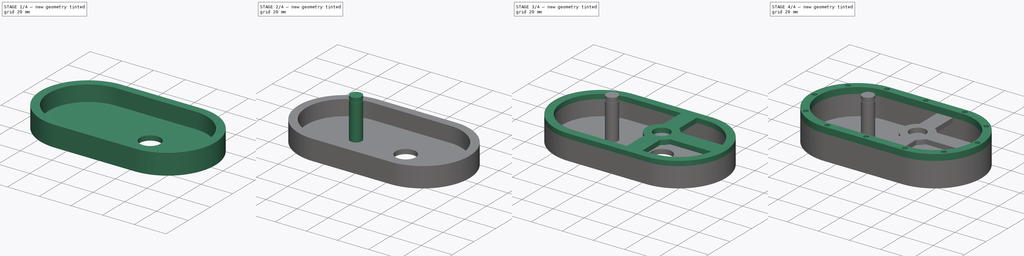
[diagram: build sequence overview — one tinted view per stage of 4, left to right]
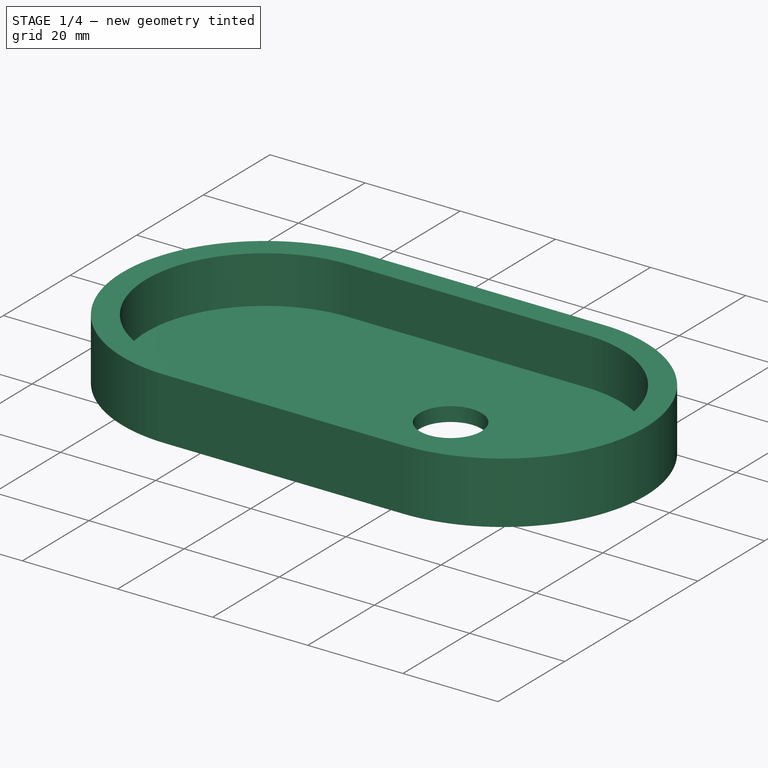
[diagram: stage 1 of 4 — iso view after this stage's code; geometry added in this stage tinted green]
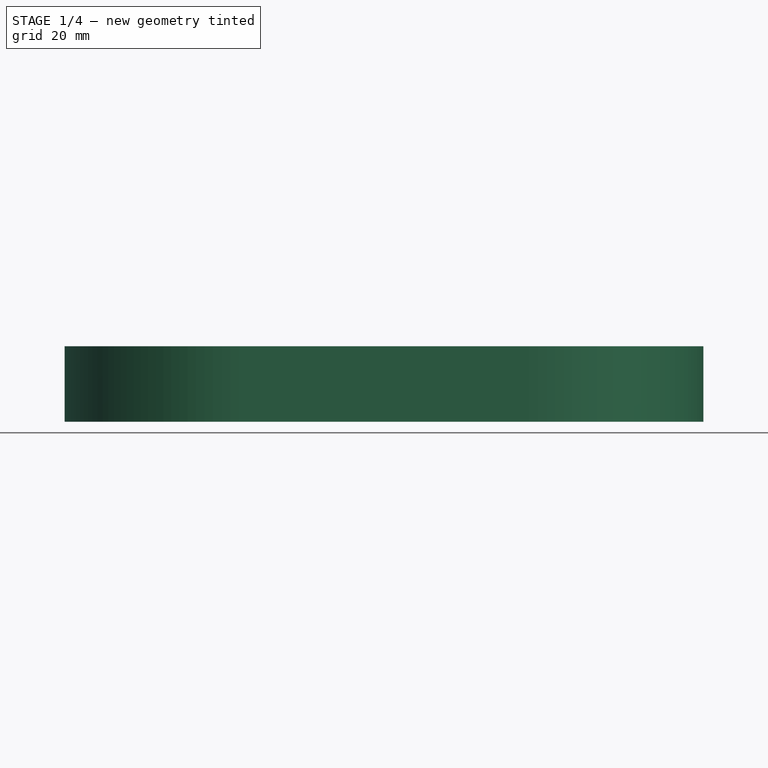
[diagram: stage 1 of 4 — front view after this stage's code; geometry added in this stage tinted green]
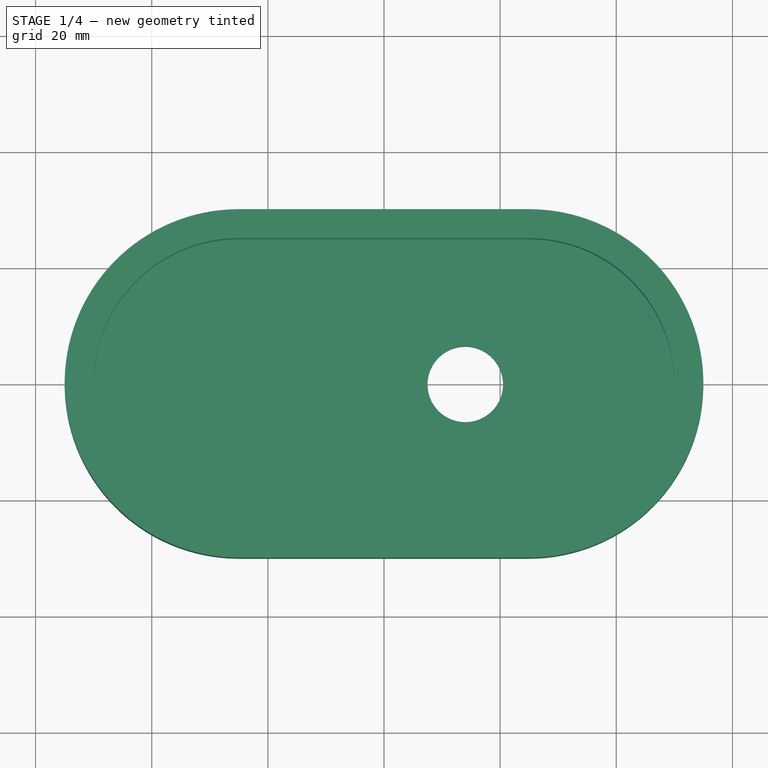
[diagram: stage 1 of 4 — top view after this stage's code; geometry added in this stage tinted green]
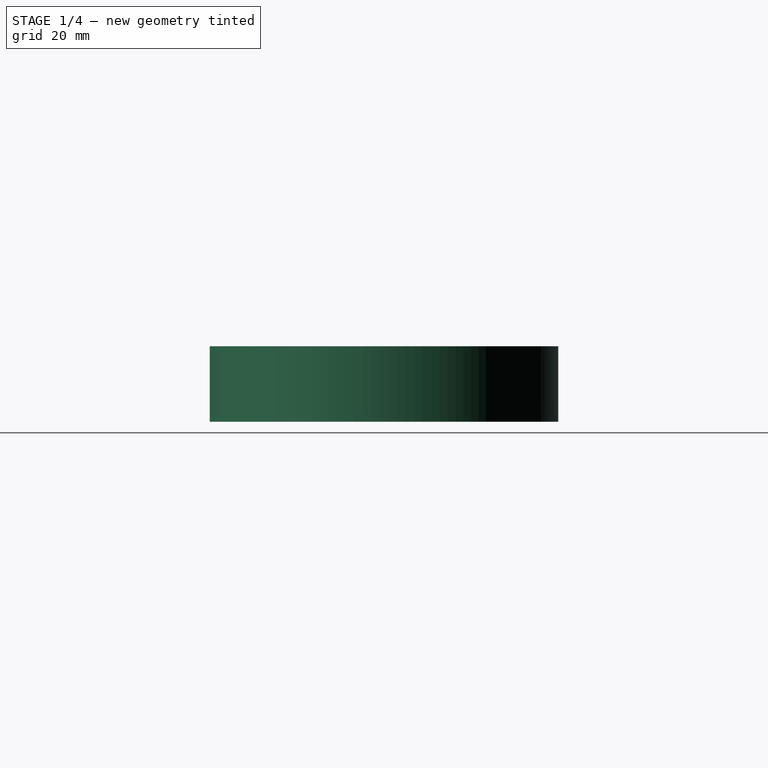
[diagram: stage 1 of 4 — right view after this stage's code; geometry added in this stage tinted green]
FCSTD DOCUMENT  (FreeCAD 0.17R13522 (Git))
Label: GearBoxTop
License: All rights reserved
LicenseURL: http://en.wikipedia.org/wiki/All_rights_reserved
objects: Sketcher::SketchObject×9, PartDesign::Pad×5, PartDesign::Pocket×3, PartDesign::Plane×1, PartDesign::Groove×1, PartDesign::Body×1, App::Part×1
note: 29 computed .brp shape members not serialized (recipe doc carries the construction recipe); baked Part::Feature solids carry a one-line shape summary decoded from their .brp

FEATURE [Sketcher::SketchObject] Sketch
  MapMode = 5
  Support = -> [XY_Plane001]
  sketch-geometry (6):
    g0: ArcOfCircle CenterX=-25 CenterY=0 CenterZ=0 NormalX=0 NormalY=0 NormalZ=1 AngleXU=0 Radius=30 StartAngle=1.5708 EndAngle=4.71239
    g1: ArcOfCircle CenterX=25 CenterY=0 CenterZ=0 NormalX=0 NormalY=0 NormalZ=1 AngleXU=0 Radius=30 StartAngle=4.71239 EndAngle=7.85398
    g2: LineSegment StartX=-25 StartY=-30 StartZ=0 EndX=25 EndY=-30 EndZ=0
    g3: LineSegment StartX=-25 StartY=30 StartZ=0 EndX=25 EndY=30 EndZ=0
    g4: Circle CenterX=14 CenterY=0 CenterZ=0 NormalX=0 NormalY=0 NormalZ=1 AngleXU=0 Radius=6.5
    g5: GeomPoint X=55 Y=0 Z=0
  constraints (15):
    c: Tangent(g0,g3) = 1.5708
    c: Tangent(g0,g2) = -1.5708
    c: Tangent(g2,g1) = -1.5708
    c: Tangent(g3,g1) = 1.5708
    c: Horizontal(g2)
    c: Equal(g0,g1)
    c: PointOnObject(g0,g-1)
    c: DistanceY(g1,g1) = 60
    c: DistanceX(g0,g1) = 50
    c: Symmetric(g0,g1,g-1)
    c: Radius(g4) = 6.5
    c: PointOnObject(g4,g-1)
    c: PointOnObject(g5,g1)
    c: PointOnObject(g5,g-1)
    c: DistanceX(g4,g5) = 41
FEATURE [PartDesign::Pad] Pad
  Length = 3
  Length2 = 100
  Profile = -> Sketch
  Type = 0
FEATURE [Sketcher::SketchObject] Sketch001
  ExternalGeometry = -> [Pad]
  MapMode = 5
  Placement = pos=(0,0,3) rot=(0,0,1;0rad)
  Support = -> [Pad]
  sketch-geometry (12):
    g0: ArcOfCircle CenterX=-25 CenterY=0 CenterZ=0 NormalX=0 NormalY=0 NormalZ=1 AngleXU=0 Radius=30 StartAngle=1.5708 EndAngle=4.71239
    g1: ArcOfCircle CenterX=25 CenterY=0 CenterZ=0 NormalX=0 NormalY=0 NormalZ=1 AngleXU=0 Radius=30 StartAngle=4.71239 EndAngle=7.85398
    g2: LineSegment StartX=-25 StartY=-30 StartZ=0 EndX=25 EndY=-30 EndZ=0
    g3: LineSegment StartX=-25 StartY=30 StartZ=0 EndX=25 EndY=30 EndZ=0
    g4: ArcOfCircle CenterX=-25 CenterY=0 CenterZ=0 NormalX=0 NormalY=0 NormalZ=1 AngleXU=0 Radius=25 StartAngle=1.5708 EndAngle=4.71239
    g5: ArcOfCircle CenterX=25 CenterY=0 CenterZ=0 NormalX=0 NormalY=0 NormalZ=1 AngleXU=0 Radius=25 StartAngle=4.71239 EndAngle=7.85398
    g6: LineSegment StartX=-25 StartY=-25 StartZ=0 EndX=25 EndY=-25 EndZ=0
    g7: LineSegment StartX=-25 StartY=25 StartZ=0 EndX=25 EndY=25 EndZ=0
    g8: LineSegment [constr] StartX=-25 StartY=25 StartZ=0 EndX=-25 EndY=30 EndZ=0
    g9: LineSegment [constr] StartX=25 StartY=-25 StartZ=0 EndX=25 EndY=-30 EndZ=0
    g10: LineSegment [constr] StartX=-55 StartY=0 StartZ=0 EndX=-50 EndY=0 EndZ=0
    g11: LineSegment [constr] StartX=50 StartY=0 StartZ=0 EndX=55 EndY=0 EndZ=0
  constraints (33):
    c: Tangent(g0,g3) = 1.5708
    c: Tangent(g0,g2) = -1.5708
    c: Tangent(g2,g1) = -1.5708
    c: Tangent(g3,g1) = 1.5708
    c: Equal(g0,g1)
    c: Coincident(g0,g-4)
    c: Coincident(g1,g-6)
    c: Coincident(g1,g-6)
    c: Tangent(g4,g7) = 1.5708
    c: Tangent(g4,g6) = -1.5708
    c: Tangent(g6,g5) = -1.5708
    c: Tangent(g7,g5) = 1.5708
    c: Horizontal(g6)
    c: Equal(g4,g5)
    c: PointOnObject(g4,g-1)
    c: Coincident(g8,g4)
    c: PointOnObject(g8,g3)
    c: Coincident(g9,g5)
    c: PointOnObject(g9,g2)
    c: Vertical(g9)
    c: Vertical(g8)
    c: PointOnObject(g10,g0)
    c: PointOnObject(g10,g4)
    c: Horizontal(g10)
    c: PointOnObject(g11,g5)
    c: PointOnObject(g11,g1)
    c: Horizontal(g11)
    c: Equal(g10,g8)
    c: Equal(g8,g11)
    c: Equal(g11,g9)
    c: DistanceY(g8,g8) = 5
    c: PointOnObject(g11,g-1)
    c: PointOnObject(g10,g-1)
FEATURE [PartDesign::Pad] Pad001
  BaseFeature = -> Pad
  Length = 10
  Length2 = 100
  Profile = -> Sketch001
  Type = 0
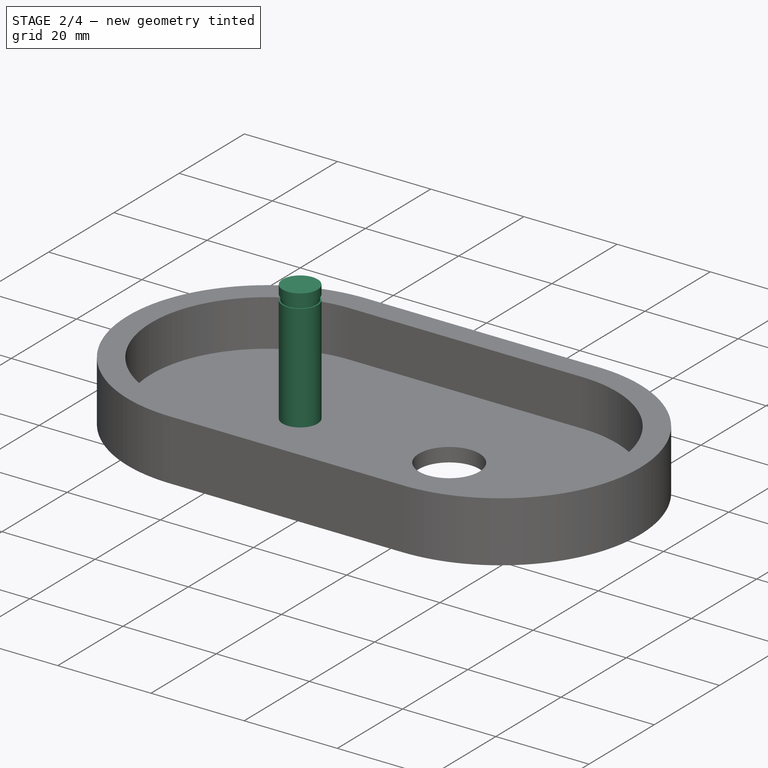
[diagram: stage 2 of 4 — iso view after this stage's code; geometry added in this stage tinted green]
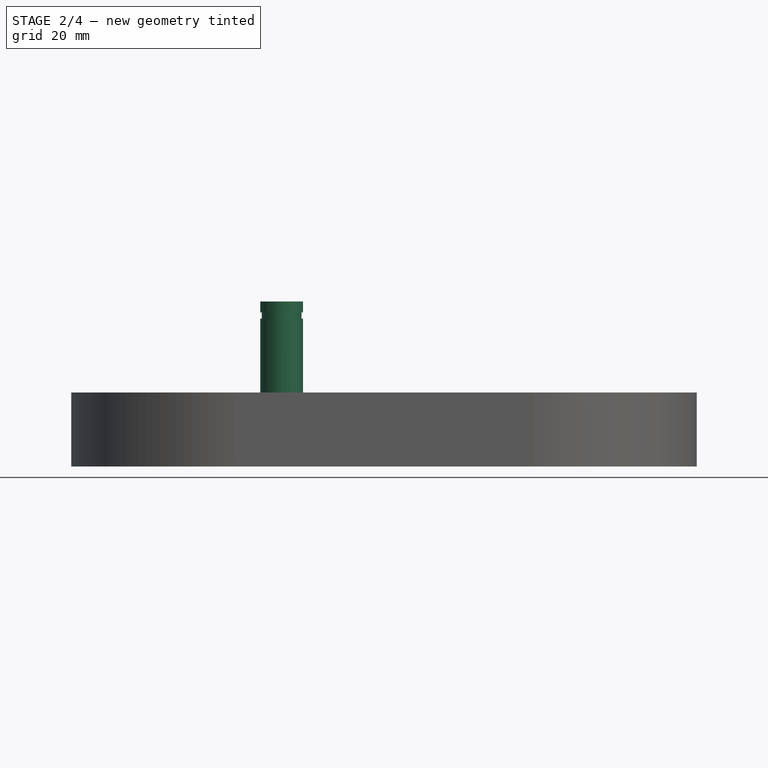
[diagram: stage 2 of 4 — front view after this stage's code; geometry added in this stage tinted green]
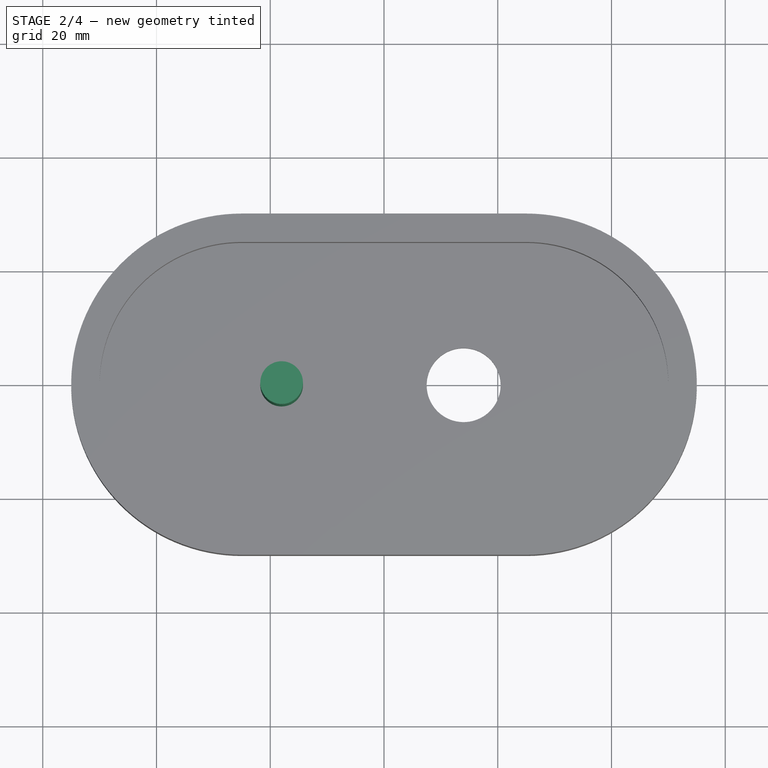
[diagram: stage 2 of 4 — top view after this stage's code; geometry added in this stage tinted green]
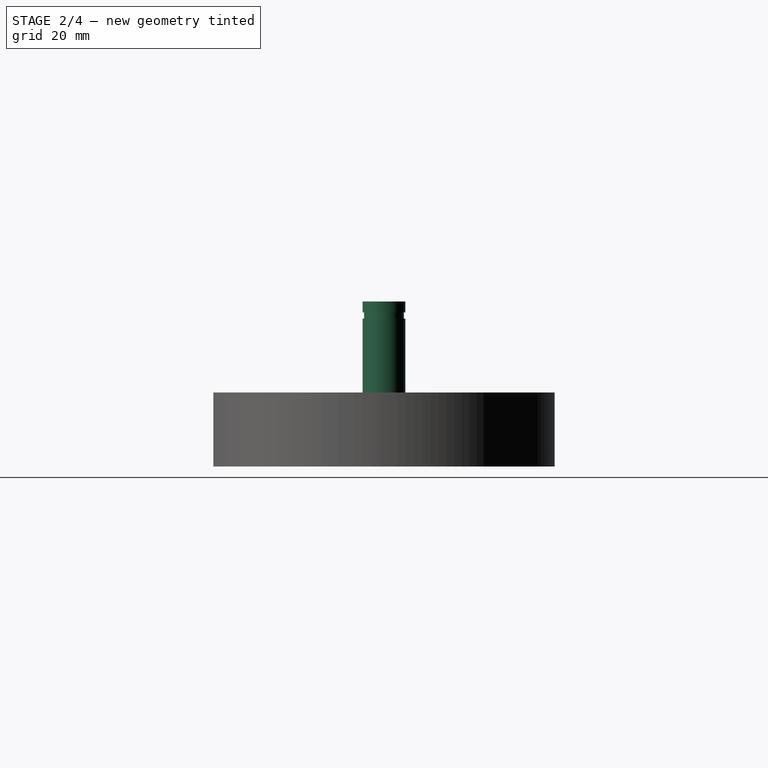
[diagram: stage 2 of 4 — right view after this stage's code; geometry added in this stage tinted green]
FEATURE [Sketcher::SketchObject] Sketch002
  ExternalGeometry = -> [Pad001]
  MapMode = 5
  Placement = pos=(0,0,3) rot=(0,0,1;0rad)
  Support = -> [Pad001]
  sketch-geometry (6):
    g0: Circle CenterX=-18 CenterY=0 CenterZ=0 NormalX=0 NormalY=0 NormalZ=1 AngleXU=0 Radius=3.75
    g1: Circle [constr] CenterX=-18 CenterY=0 CenterZ=0 NormalX=0 NormalY=0 NormalZ=1 AngleXU=0 Radius=24
    g2: Circle [constr] CenterX=-18 CenterY=0 CenterZ=0 NormalX=0 NormalY=0 NormalZ=1 AngleXU=0 Radius=20
    g3: Circle [constr] CenterX=14 CenterY=0 CenterZ=0 NormalX=0 NormalY=0 NormalZ=1 AngleXU=0 Radius=12
    g4: GeomPoint X=55 Y=0 Z=0
    g5: Circle [constr] CenterX=14 CenterY=0 CenterZ=0 NormalX=0 NormalY=0 NormalZ=1 AngleXU=0 Radius=7.5
  constraints (14):
    c: PointOnObject(g0,g-1)
    c: Coincident(g1,g0)
    c: Radius(g1) = 24
    c: Coincident(g2,g0)
    c: Radius(g2) = 20
    c: PointOnObject(g3,g-1)
    c: Tangent(g3,g2)
    c: PointOnObject(g4,g-1)
    c: DistanceX(g3,g4) = 41
    c: Radius(g3) = 12
    c: Coincident(g5,g3)
    c: Radius(g5) = 7.5
    c: Radius(g0) = 3.75
    c: PointOnObject(g4,g-4)
FEATURE [PartDesign::Pad] Pad002
  BaseFeature = -> Pad001
  Length = 26
  Length2 = 100
  Profile = -> Sketch002
  Type = 0
FEATURE [PartDesign::Plane] DatumPlane
  AttachmentOffset = pos=(0,0,0) rot=(1,0,0;1.5708rad)
  MapMode = 45
  Placement = pos=(-18,0,16) rot=(1,0,0;1.5708rad)
  Support = -> [Pad002]
FEATURE [Sketcher::SketchObject] Sketch003
  ExternalGeometry = -> [Pad002]
  MapMode = 5
  Placement = pos=(-18,0,16) rot=(1,0,0;1.5708rad)
  Support = -> [DatumPlane]
  sketch-geometry (4):
    g0: LineSegment StartX=3.75 StartY=10 StartZ=0 EndX=3.5 EndY=10 EndZ=0
    g1: LineSegment StartX=3.5 StartY=10 StartZ=0 EndX=3.5 EndY=11.1 EndZ=0
    g2: LineSegment StartX=3.5 StartY=11.1 StartZ=0 EndX=3.75 EndY=11.1 EndZ=0
    g3: LineSegment StartX=3.75 StartY=11.1 StartZ=0 EndX=3.75 EndY=10 EndZ=0
  constraints (12):
    c: Coincident(g0,g1)
    c: Coincident(g1,g2)
    c: Coincident(g2,g3)
    c: Coincident(g3,g0)
    c: Horizontal(g0)
    c: Horizontal(g2)
    c: Vertical(g1)
    c: Vertical(g3)
    c: DistanceY(g3,g3) = 1.1
    c: DistanceX(g2,g2) = 0.25
    c: PointOnObject(g2,g-3)
    c: DistanceY(g-3,g0) = 23
FEATURE [PartDesign::Groove] Groove
  Angle = 360
  Axis = (0,0,1)
  Base = (-18,0,16)
  BaseFeature = -> Pad002
  Profile = -> Sketch003
  ReferenceAxis = -> Sketch003 [V_Axis]
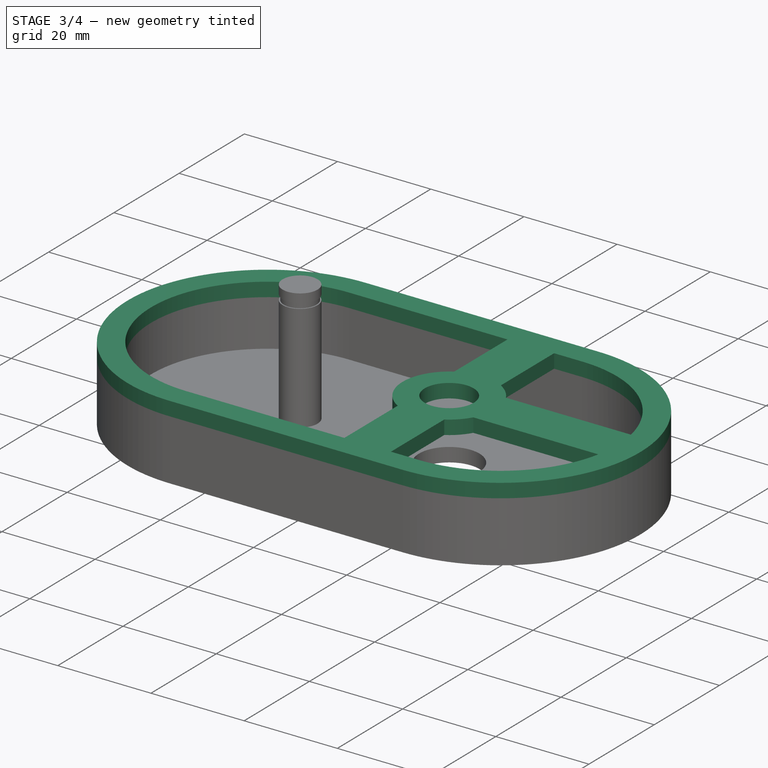
[diagram: stage 3 of 4 — iso view after this stage's code; geometry added in this stage tinted green]
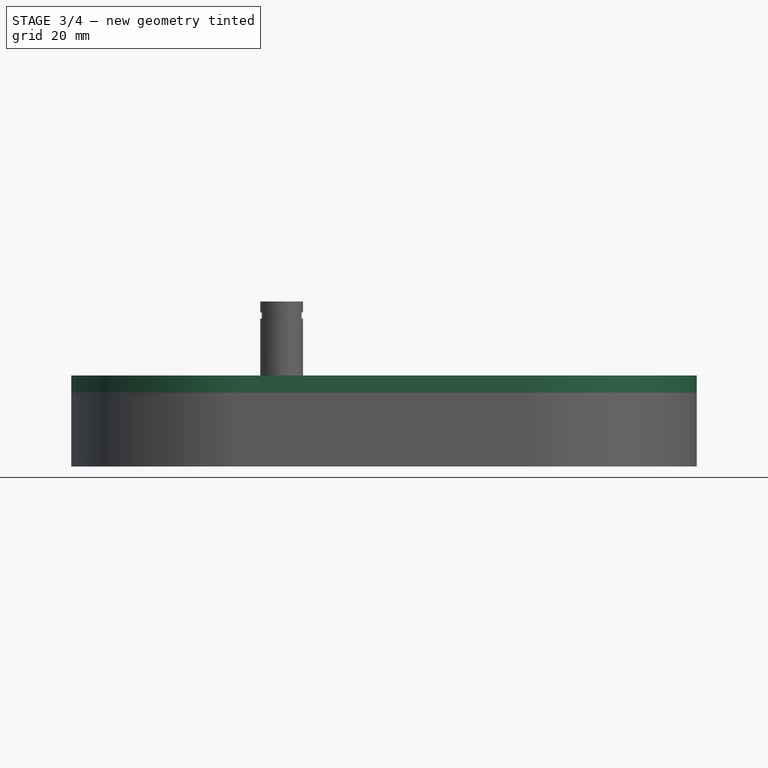
[diagram: stage 3 of 4 — front view after this stage's code; geometry added in this stage tinted green]
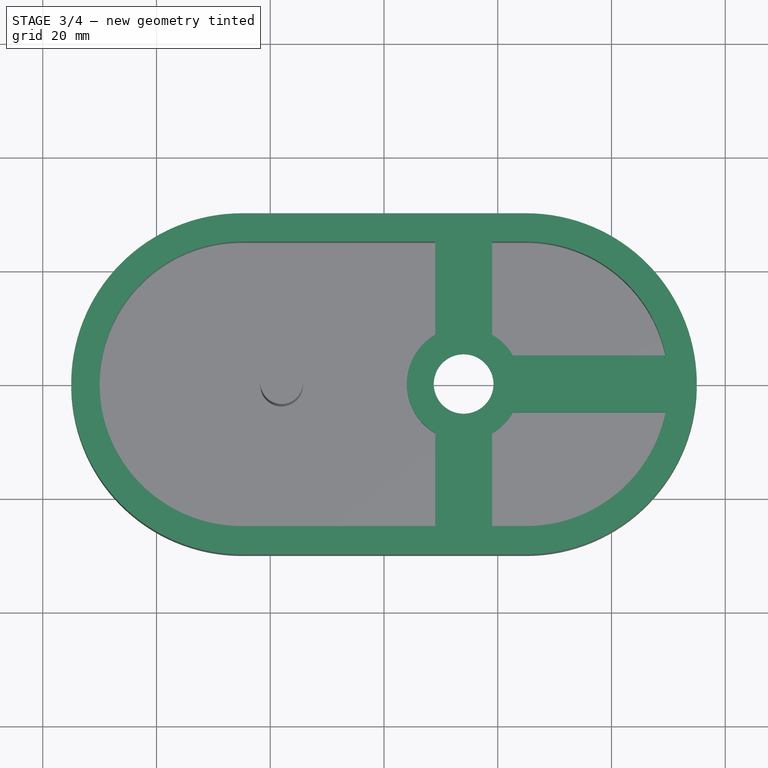
[diagram: stage 3 of 4 — top view after this stage's code; geometry added in this stage tinted green]
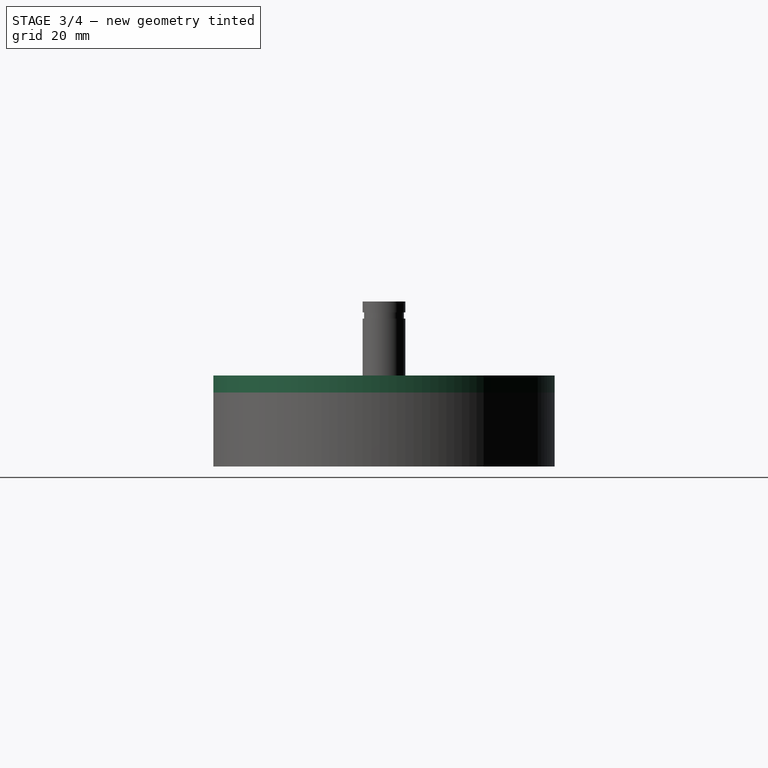
[diagram: stage 3 of 4 — right view after this stage's code; geometry added in this stage tinted green]
FEATURE [Sketcher::SketchObject] Sketch005
  ExternalGeometry = -> [Groove]
  MapMode = 5
  Placement = pos=(0,0,13) rot=(0,0,1;0rad)
  Support = -> [Groove]
  sketch-geometry (23):
    g0: LineSegment StartX=9 StartY=8.66025 StartZ=0 EndX=9 EndY=25 EndZ=0
    g1: LineSegment StartX=19 StartY=8.66025 StartZ=0 EndX=19 EndY=25 EndZ=0
    g2: LineSegment StartX=9 StartY=-8.66025 StartZ=0 EndX=9 EndY=-25 EndZ=0
    g3: LineSegment StartX=19 StartY=-8.66025 StartZ=0 EndX=19 EndY=-25 EndZ=0
    g4: LineSegment StartX=22.6603 StartY=-5 StartZ=0 EndX=49.4949 EndY=-5 EndZ=0
    g5: LineSegment StartX=22.6603 StartY=5 StartZ=0 EndX=49.4949 EndY=5 EndZ=0
    g6: LineSegment [constr] StartX=9 StartY=8.66025 StartZ=0 EndX=19 EndY=8.66025 EndZ=0
    g7: LineSegment [constr] StartX=9 StartY=-8.66025 StartZ=0 EndX=19 EndY=-8.66025 EndZ=0
    g8: LineSegment [constr] StartX=22.6603 StartY=-5 StartZ=0 EndX=22.6603 EndY=5 EndZ=0
    g9: ArcOfCircle CenterX=-25 CenterY=0 CenterZ=0 NormalX=0 NormalY=0 NormalZ=1 AngleXU=0 Radius=25 StartAngle=1.5708 EndAngle=4.71239
    g10: ArcOfCircle CenterX=-25 CenterY=0 CenterZ=0 NormalX=0 NormalY=0 NormalZ=1 AngleXU=0 Radius=30 StartAngle=1.5708 EndAngle=4.71239
    g11: ArcOfCircle CenterX=25 CenterY=0 CenterZ=0 NormalX=0 NormalY=0 NormalZ=1 AngleXU=0 Radius=30 StartAngle=4.71239 EndAngle=7.85398
    g12: LineSegment StartX=-25 StartY=-30 StartZ=0 EndX=25 EndY=-30 EndZ=0
    g13: LineSegment StartX=-25 StartY=30 StartZ=0 EndX=25 EndY=30 EndZ=0
    g14: ArcOfCircle CenterX=14 CenterY=0 CenterZ=0 NormalX=0 NormalY=0 NormalZ=1 AngleXU=0 Radius=10 StartAngle=2.0944 EndAngle=4.18879
    g15: ArcOfCircle CenterX=14 CenterY=0 CenterZ=0 NormalX=0 NormalY=0 NormalZ=1 AngleXU=0 Radius=10 StartAngle=0.523599 EndAngle=1.0472
    g16: ArcOfCircle CenterX=14 CenterY=0 CenterZ=0 NormalX=0 NormalY=0 NormalZ=1 AngleXU=0 Radius=10 StartAngle=5.23599 EndAngle=5.75959
    g17: LineSegment StartX=-25 StartY=25 StartZ=0 EndX=9 EndY=25 EndZ=0
    g18: LineSegment StartX=-25 StartY=-25 StartZ=0 EndX=9 EndY=-25 EndZ=0
    g19: LineSegment StartX=19 StartY=-25 StartZ=0 EndX=25 EndY=-25 EndZ=0
    g20: LineSegment StartX=19 StartY=25 StartZ=0 EndX=25 EndY=25 EndZ=0
    g21: ArcOfCircle CenterX=25 CenterY=0 CenterZ=0 NormalX=0 NormalY=0 NormalZ=1 AngleXU=0 Radius=25 StartAngle=0.201358 EndAngle=1.5708
    g22: ArcOfCircle CenterX=25 CenterY=0 CenterZ=0 NormalX=0 NormalY=0 NormalZ=1 AngleXU=0 Radius=25 StartAngle=4.71239 EndAngle=6.08183
  constraints (60):
    c: PointOnObject(g0,g-7)
    c: Vertical(g0)
    c: Vertical(g1)
    c: Vertical(g2)
    c: Vertical(g3)
    c: Horizontal(g4)
    c: Horizontal(g5)
    c: Equal(g2,g3)
    c: Equal(g3,g0)
    c: Equal(g0,g1)
    c: Coincident(g6,g0)
    c: Coincident(g6,g1)
    c: Horizontal(g6)
    c: Coincident(g7,g2)
    c: Coincident(g7,g3)
    c: Horizontal(g7)
    c: Equal(g7,g6)
    c: Coincident(g8,g4)
    c: Coincident(g8,g5)
    c: Vertical(g8)
    c: Coincident(g9,g-5)
    c: Tangent(g10,g13) = 1.5708
    c: Tangent(g10,g12) = -1.5708
    c: Tangent(g12,g11) = -1.5708
    c: Tangent(g13,g11) = 1.5708
    c: Horizontal(g12)
    c: Equal(g10,g11)
    c: Coincident(g10,g9)
    c: Coincident(g11,g-9)
    c: Coincident(g14,g-10)
    c: Coincident(g14,g2)
    c: Coincident(g14,g0)
    c: Coincident(g15,g14)
    c: Coincident(g15,g1)
    c: Coincident(g15,g5)
    c: Coincident(g16,g14)
    c: Coincident(g16,g3)
    c: Coincident(g16,g4)
    c: Radius(g14) = 10
    c: Equal(g14,g15)
    c: Coincident(g17,g9)
    c: Coincident(g17,g0)
    c: Horizontal(g17)
    c: Coincident(g18,g9)
    c: Horizontal(g18)
    c: Coincident(g18,g2)
    c: Coincident(g19,g3)
    c: Coincident(g19,g-11)
    c: Coincident(g20,g1)
    c: Coincident(g20,g-11)
    c: Coincident(g21,g11)
    c: Coincident(g21,g20)
    c: Coincident(g21,g5)
    c: Coincident(g22,g11)
    c: Coincident(g22,g4)
    c: Coincident(g22,g19)
    c: Equal(g7,g8)
    c: DistanceY(g4,g5) = 10
    c: PointOnObject(g2,g-8)
    c: Coincident(g9,g-7)
FEATURE [PartDesign::Pad] Pad003
  BaseFeature = -> Groove
  Length = 3
  Length2 = 100
  Profile = -> Sketch005
  Type = 0
FEATURE [Sketcher::SketchObject] Sketch006
  ExternalGeometry = -> [Pad003]
  MapMode = 5
  Placement = pos=(0,0,13) rot=(1,0,0;3.14159rad)
  Support = -> [Pad003]
  sketch-geometry (2):
    g0: Circle CenterX=14 CenterY=0 CenterZ=0 NormalX=0 NormalY=0 NormalZ=1 AngleXU=0 Radius=7.1
    g1: Circle CenterX=14 CenterY=0 CenterZ=0 NormalX=0 NormalY=0 NormalZ=1 AngleXU=0 Radius=5.9
  constraints (4):
    c: Radius(g0) = 7.1
    c: Coincident(g1,g0)
    c: Radius(g1) = 5.9
    c: Coincident(g0,g-4)
FEATURE [PartDesign::Pocket] Pocket
  BaseFeature = -> Pad003
  Length = 1.1
  Length2 = 100
  Profile = -> Sketch006
  Type = 0
FEATURE [Sketcher::SketchObject] Sketch007
  ExternalGeometry = -> [Pocket]
  MapMode = 5
  Placement = pos=(0,0,13) rot=(1,0,0;3.14159rad)
  Support = -> [Pocket]
  sketch-geometry (1):
    g0: Circle CenterX=14 CenterY=0 CenterZ=0 NormalX=0 NormalY=0 NormalZ=1 AngleXU=0 Radius=5.25
  constraints (2):
    c: Radius(g0) = 5.25
    c: Coincident(g0,g-4)
FEATURE [PartDesign::Pocket] Pocket001
  BaseFeature = -> Pocket
  Length = 3
  Length2 = 100
  Profile = -> Sketch007
  Type = 0
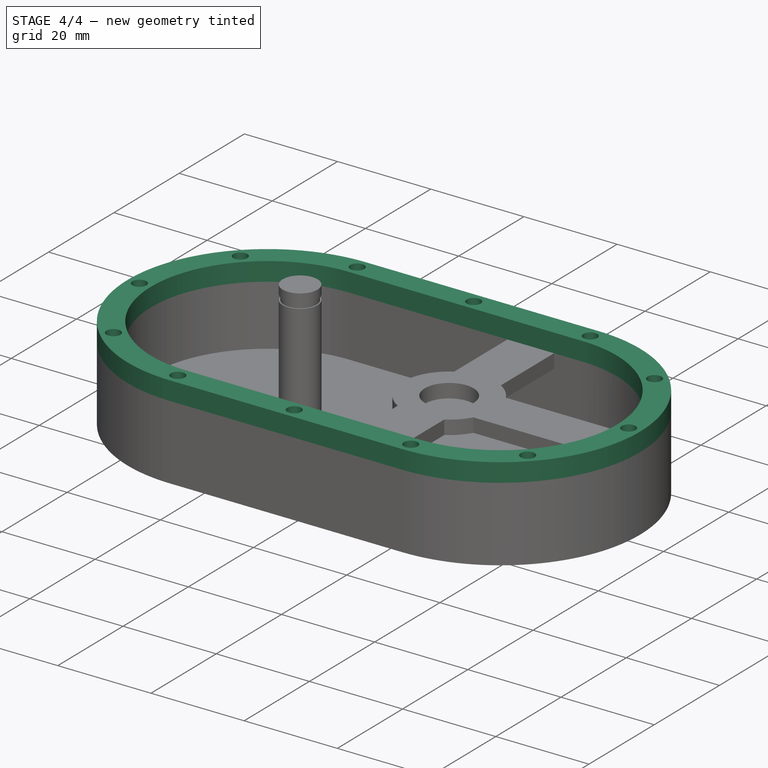
[diagram: stage 4 of 4 — iso view after this stage's code; geometry added in this stage tinted green]
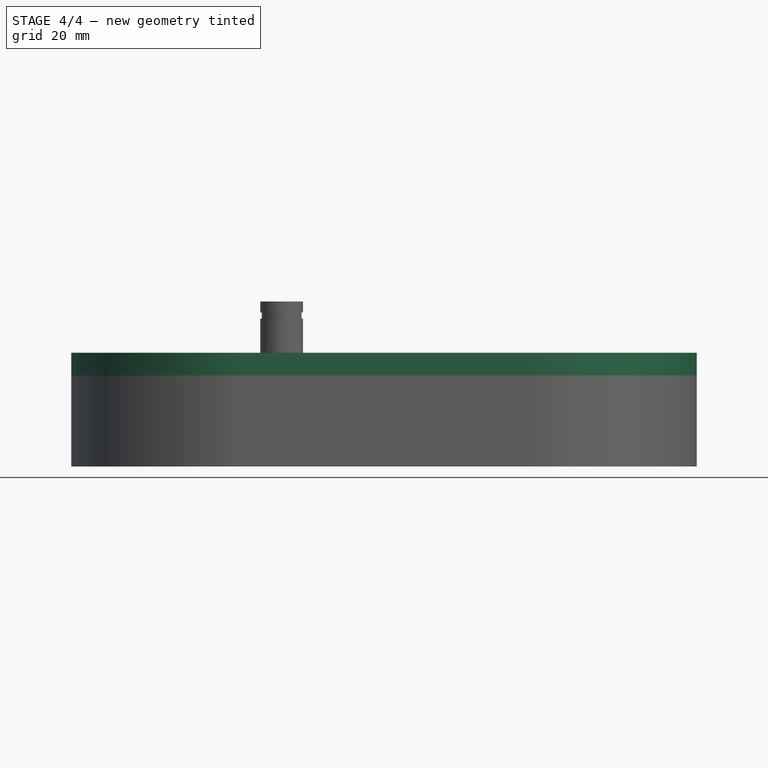
[diagram: stage 4 of 4 — front view after this stage's code; geometry added in this stage tinted green]
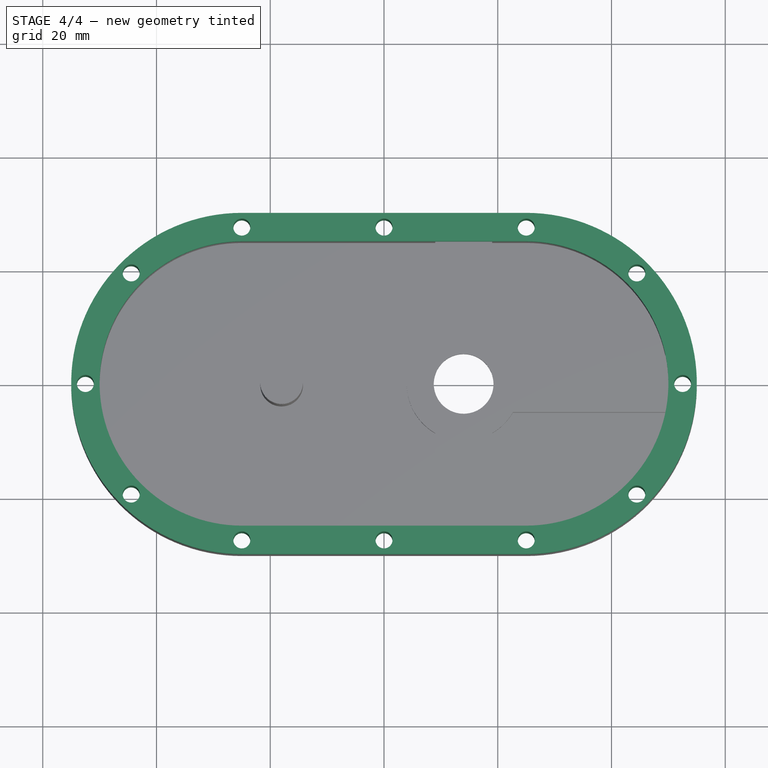
[diagram: stage 4 of 4 — top view after this stage's code; geometry added in this stage tinted green]
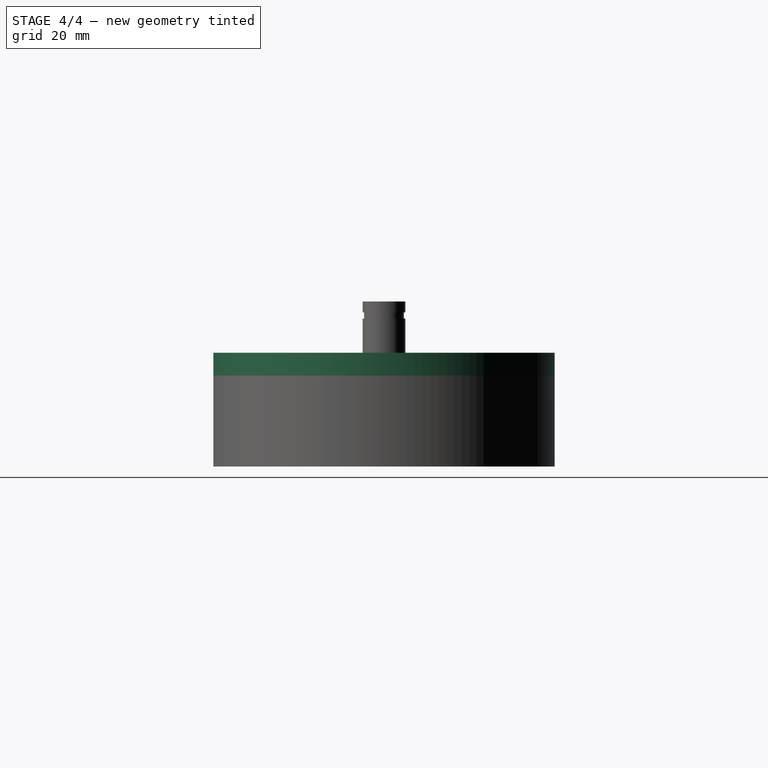
[diagram: stage 4 of 4 — right view after this stage's code; geometry added in this stage tinted green]
FEATURE [Sketcher::SketchObject] Sketch008
  ExternalGeometry = -> [Pocket001]
  MapMode = 5
  Placement = pos=(0,0,16) rot=(0,0,1;0rad)
  Support = -> [Pocket001]
  sketch-geometry (8):
    g0: ArcOfCircle CenterX=-25 CenterY=0 CenterZ=0 NormalX=0 NormalY=0 NormalZ=1 AngleXU=0 Radius=30 StartAngle=1.5708 EndAngle=4.71239
    g1: ArcOfCircle CenterX=25 CenterY=0 CenterZ=0 NormalX=0 NormalY=0 NormalZ=1 AngleXU=0 Radius=30 StartAngle=4.71239 EndAngle=7.85398
    g2: LineSegment StartX=-25 StartY=-30 StartZ=0 EndX=25 EndY=-30 EndZ=0
    g3: LineSegment StartX=-25 StartY=30 StartZ=0 EndX=25 EndY=30 EndZ=0
    g4: ArcOfCircle CenterX=-25 CenterY=0 CenterZ=0 NormalX=0 NormalY=0 NormalZ=1 AngleXU=0 Radius=25 StartAngle=1.5708 EndAngle=4.71239
    g5: ArcOfCircle CenterX=25 CenterY=0 CenterZ=0 NormalX=0 NormalY=0 NormalZ=1 AngleXU=0 Radius=25 StartAngle=4.71239 EndAngle=7.85398
    g6: LineSegment StartX=-25 StartY=-25 StartZ=0 EndX=25 EndY=-25 EndZ=0
    g7: LineSegment StartX=-25 StartY=25 StartZ=0 EndX=25 EndY=25 EndZ=0
  constraints (16):
    c: Tangent(g0,g3) = 1.5708
    c: Tangent(g0,g2) = -1.5708
    c: Tangent(g2,g1) = -1.5708
    c: Tangent(g3,g1) = 1.5708
    c: Horizontal(g2)
    c: Equal(g0,g1)
    c: Coincident(g1,g-4)
    c: Tangent(g4,g7) = 1.5708
    c: Tangent(g4,g6) = -1.5708
    c: Tangent(g6,g5) = -1.5708
    c: Tangent(g7,g5) = 1.5708
    c: Horizontal(g6)
    c: Equal(g4,g5)
    c: Coincident(g4,g0)
    c: Coincident(g5,g-6)
    c: Coincident(g0,g-3)
FEATURE [PartDesign::Pad] Pad004
  BaseFeature = -> Pocket001
  Length = 4
  Length2 = 100
  Profile = -> Sketch008
  Type = 0
FEATURE [Sketcher::SketchObject] Sketch009
  ExternalGeometry = -> [Pad004]
  MapMode = 5
  Placement = pos=(0,0,0) rot=(1,0,0;3.14159rad)
  Support = -> [Pad004]
  sketch-geometry (21):
    g0: ArcOfCircle [constr] CenterX=-25 CenterY=0 CenterZ=0 NormalX=0 NormalY=0 NormalZ=1 AngleXU=0 Radius=27.5 StartAngle=1.5708 EndAngle=4.71239
    g1: ArcOfCircle [constr] CenterX=25 CenterY=0 CenterZ=0 NormalX=0 NormalY=0 NormalZ=1 AngleXU=0 Radius=27.5 StartAngle=4.71239 EndAngle=7.85398
    g2: LineSegment [constr] StartX=-25 StartY=-27.5 StartZ=0 EndX=25 EndY=-27.5 EndZ=0
    g3: LineSegment [constr] StartX=-25 StartY=27.5 StartZ=0 EndX=25 EndY=27.5 EndZ=0
    g4: LineSegment [constr] StartX=25 StartY=-30 StartZ=0 EndX=25 EndY=-27.5 EndZ=0
    g5: Circle CenterX=-44.4454 CenterY=19.4454 CenterZ=0 NormalX=0 NormalY=0 NormalZ=1 AngleXU=0 Radius=1.5
    g6: Circle CenterX=-52.5 CenterY=0 CenterZ=0 NormalX=0 NormalY=0 NormalZ=1 AngleXU=0 Radius=1.5
    g7: Circle CenterX=-44.4454 CenterY=-19.4454 CenterZ=0 NormalX=0 NormalY=0 NormalZ=1 AngleXU=0 Radius=1.5
    g8: Circle CenterX=-25 CenterY=-27.5 CenterZ=0 NormalX=0 NormalY=0 NormalZ=1 AngleXU=0 Radius=1.5
    g9: Circle CenterX=0 CenterY=-27.5 CenterZ=0 NormalX=0 NormalY=0 NormalZ=1 AngleXU=0 Radius=1.5
    g10: Circle CenterX=25 CenterY=-27.5 CenterZ=0 NormalX=0 NormalY=0 NormalZ=1 AngleXU=0 Radius=1.5
    g11: Circle CenterX=44.4454 CenterY=-19.4454 CenterZ=0 NormalX=0 NormalY=0 NormalZ=1 AngleXU=0 Radius=1.5
    g12: Circle CenterX=52.5 CenterY=0 CenterZ=0 NormalX=0 NormalY=0 NormalZ=1 AngleXU=0 Radius=1.5
    g13: Circle CenterX=44.4454 CenterY=19.4454 CenterZ=0 NormalX=0 NormalY=0 NormalZ=1 AngleXU=0 Radius=1.5
    g14: Circle CenterX=25 CenterY=27.5 CenterZ=0 NormalX=0 NormalY=0 NormalZ=1 AngleXU=0 Radius=1.5
    g15: Circle CenterX=0 CenterY=27.5 CenterZ=0 NormalX=0 NormalY=0 NormalZ=1 AngleXU=0 Radius=1.5
    g16: Circle CenterX=-25 CenterY=27.5 CenterZ=0 NormalX=0 NormalY=0 NormalZ=1 AngleXU=0 Radius=1.5
    g17: LineSegment [constr] StartX=-44.4454 StartY=19.4454 StartZ=0 EndX=-25 EndY=0 EndZ=0
    g18: LineSegment [constr] StartX=-44.4454 StartY=-19.4454 StartZ=0 EndX=-25 EndY=0 EndZ=0
    g19: LineSegment [constr] StartX=25 StartY=0 StartZ=0 EndX=44.4454 EndY=19.4454 EndZ=0
    g20: LineSegment [constr] StartX=25 StartY=0 StartZ=0 EndX=44.4454 EndY=-19.4454 EndZ=0
  constraints (51):
    c: Tangent(g0,g3) = 1.5708
    c: Tangent(g0,g2) = -1.5708
    c: Tangent(g2,g1) = -1.5708
    c: Tangent(g3,g1) = 1.5708
    c: Horizontal(g2)
    c: Equal(g0,g1)
    c: Coincident(g0,g-3)
    c: Coincident(g4,g-4)
    c: Coincident(g4,g1)
    c: Vertical(g4)
    c: DistanceY(g4,g1) = 2.5
    c: PointOnObject(g5,g0)
    c: PointOnObject(g6,g-1)
    c: PointOnObject(g7,g0)
    c: Coincident(g8,g0)
    c: PointOnObject(g9,g2)
    c: Coincident(g10,g1)
    c: PointOnObject(g11,g1)
    c: PointOnObject(g13,g1)
    c: Coincident(g14,g1)
    c: PointOnObject(g15,g3)
    c: Coincident(g16,g0)
    c: PointOnObject(g9,g-2)
    c: PointOnObject(g12,g1)
    c: PointOnObject(g12,g-1)
    c: PointOnObject(g15,g-2)
    c: PointOnObject(g6,g0)
    c: Radius(g16) = 1.5
    c: Equal(g16,g15)
    c: Equal(g16,g14)
    c: Equal(g16,g12)
    c: Equal(g16,g10)
    c: Equal(g16,g9)
    c: Equal(g16,g8)
    c: Equal(g16,g6)
    c: Radius(g7) = 1.5
    c: Equal(g7,g5)
    c: Equal(g7,g13)
    c: Equal(g7,g11)
    c: Coincident(g17,g5)
    c: Coincident(g17,g0)
    c: Coincident(g18,g7)
    c: Coincident(g18,g0)
    c: Coincident(g19,g1)
    c: Coincident(g19,g13)
    c: Coincident(g20,g1)
    c: Coincident(g20,g11)
    c: Angle(g20,g19) = 1.5708
    c: Angle(g17,g18) = 1.5708
    c: Angle(g-1,g17) = 2.35619
    c: Angle(g19,g-1) = 2.35619
FEATURE [PartDesign::Pocket] Pocket002
  BaseFeature = -> Pad004
  Length = 50
  Length2 = 100
  Profile = -> Sketch009
  Type = 0
FEATURE [PartDesign::Body] Body
  Group = -> [Sketch,Pad,Sketch001,Pad001,Sketch002,Pad002,DatumPlane,Sketch003,Groove,Sketch005,Pad003,Sketch006,Pocket,Sketch007,Pocket001,Sketch008,Pad004,Sketch009,Pocket002]
  Origin = -> Origin001
  Tip = -> Pocket002
FEATURE [App::Part] Part
  Group = -> [Body]
  License = CC BY 3.0
  LicenseURL = http://creativecommons.org/licenses/by/3.0/
  Origin = -> Origin
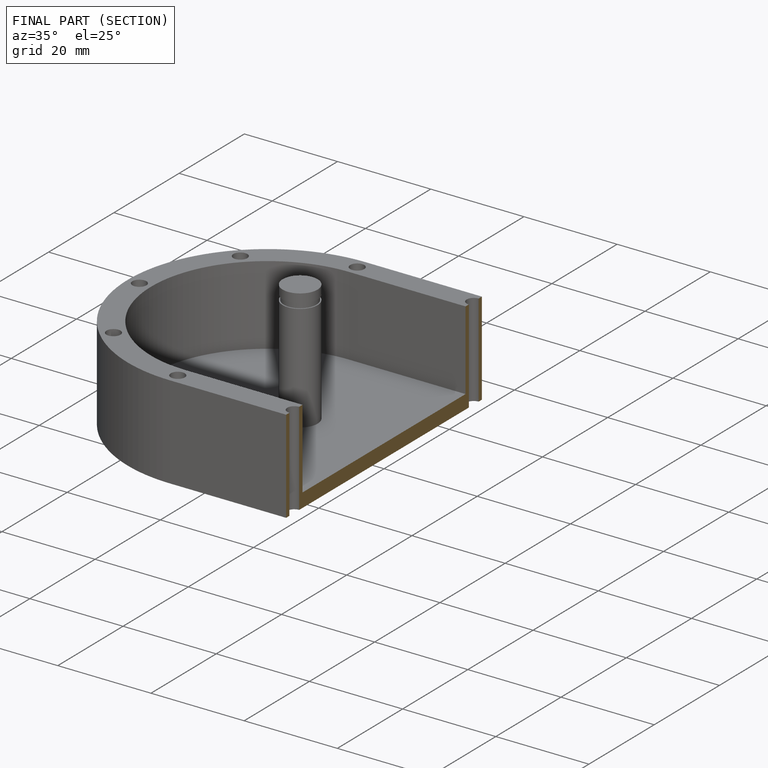
[diagram: finished part — half-section view (interior)]
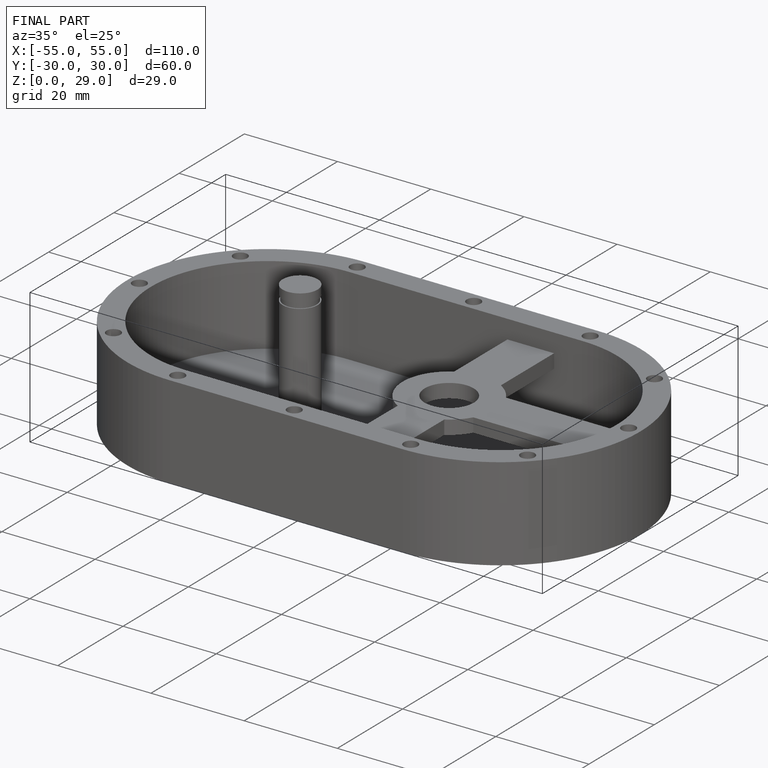
[diagram: finished part — iso view with bounding-box wireframe]
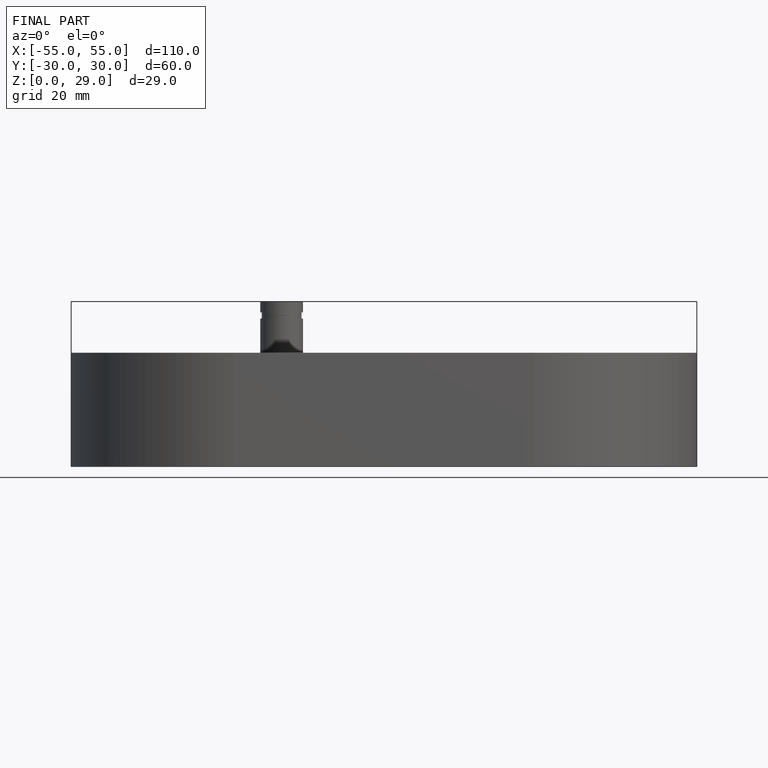
[diagram: finished part — front view with bounding-box wireframe]
